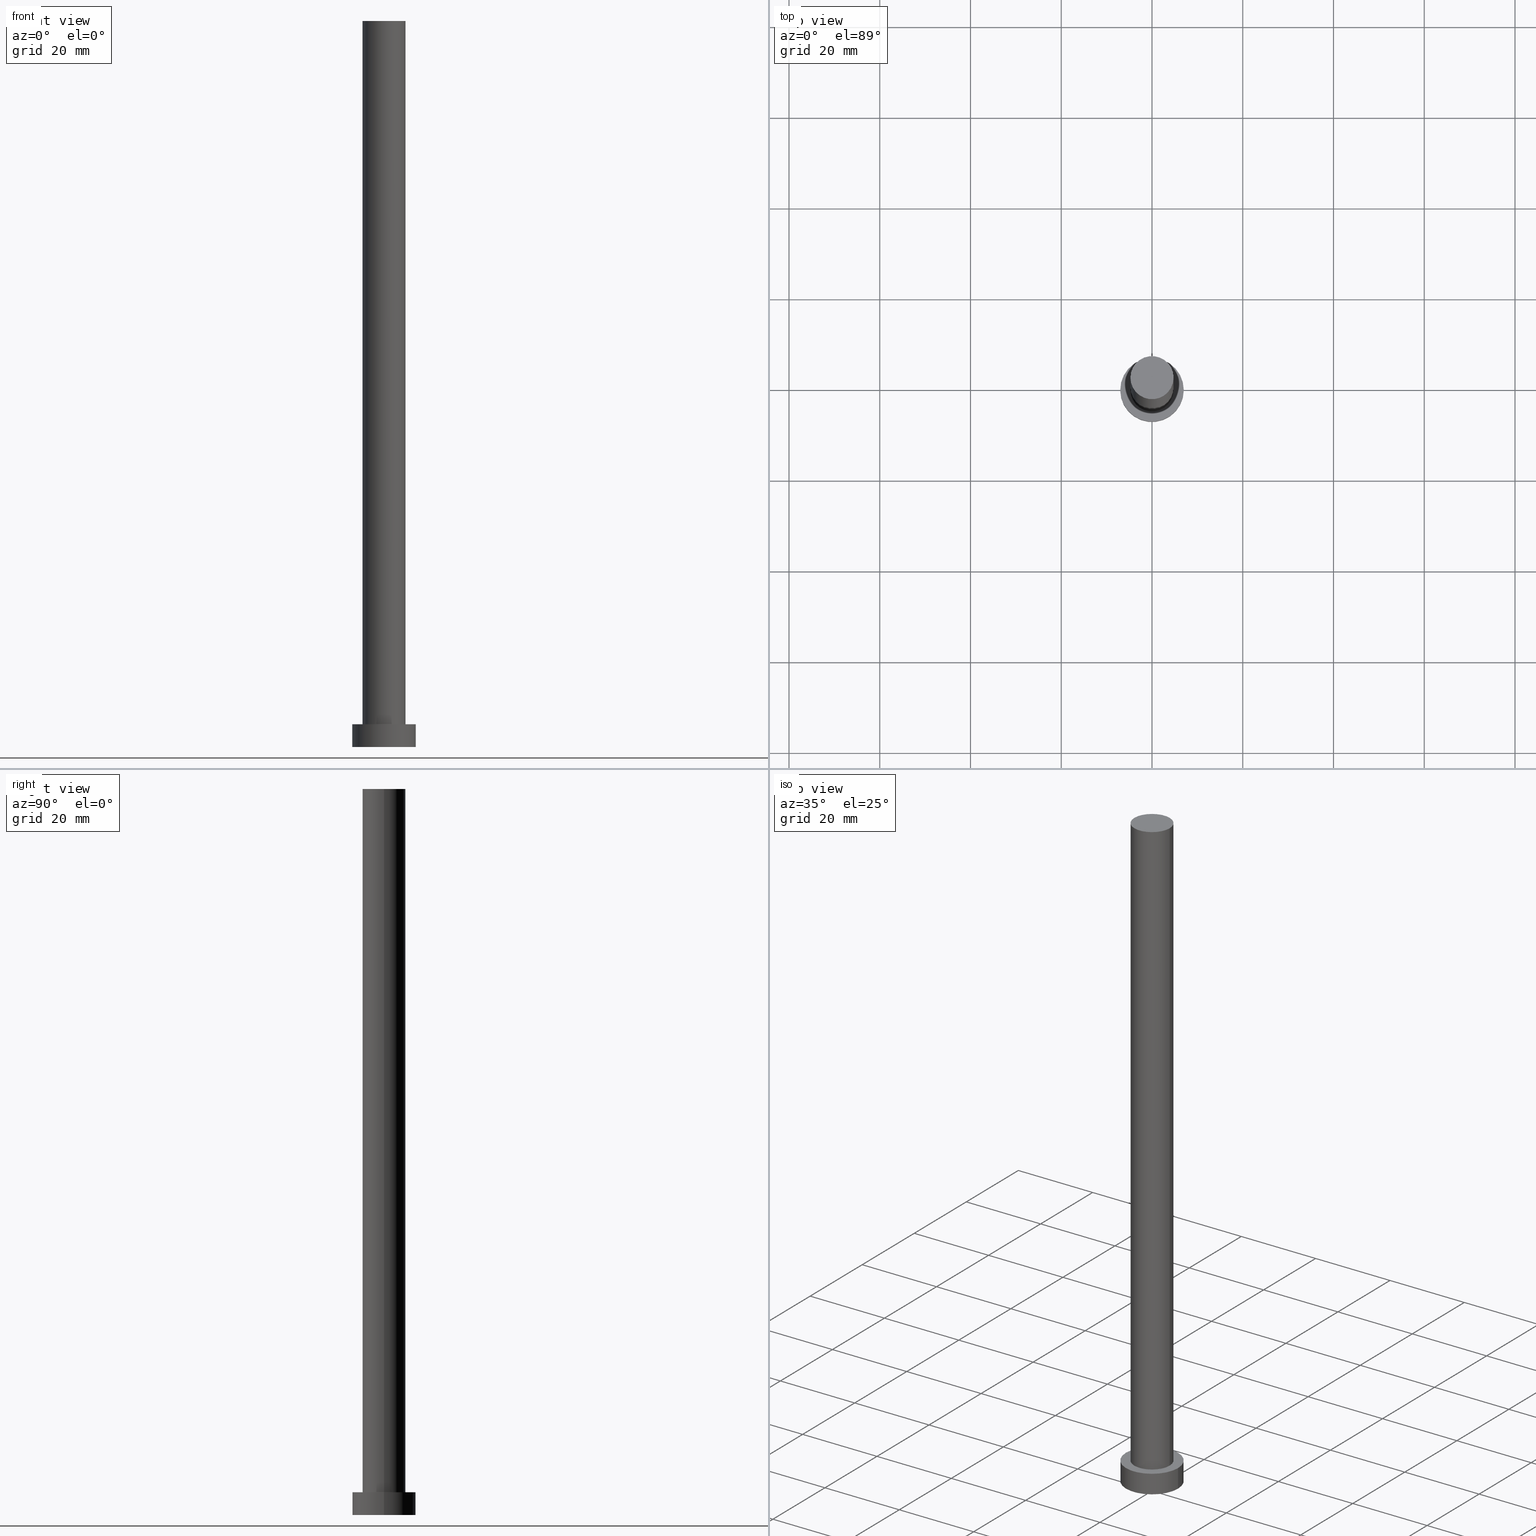
[diagram: canonical four-view strip — front | top / right | iso, engineering-drawing reading convention]
A machine part, canonical four-view strip (front | top / right | iso — engineering-drawing reading convention). The complete STEP part file that produces these views, byte-faithful:
ISO-10303-21;
HEADER;
FILE_DESCRIPTION (( 'STEP AP203' ),
    '1' );
FILE_NAME ('d84f.STEP',
    '2026-02-06T12:38:02',
    ( '' ),
    ( '' ),
    'SwSTEP 2.0',
    'SolidWorks 2019',
    '' );
FILE_SCHEMA (( 'CONFIG_CONTROL_DESIGN' ));
ENDSEC;

DATA;
#1 = DIRECTION ( 'NONE',  ( -0.000000000000000000, -0.000000000000000000, -1.000000000000000000 ) ) ;
#2 = APPROVAL ( #171, 'NEUR�EN�' ) ;
#3 = CARTESIAN_POINT ( 'NONE',  ( 0.000000000000000000, 0.000000000000000000, 160.0000000000000000 ) ) ;
#4 = AXIS2_PLACEMENT_3D ( 'NONE', #175, #113, #40 ) ;
#5 = PERSON_AND_ORGANIZATION_ROLE ( 'design_supplier' ) ;
#6 = ORIENTED_EDGE ( 'NONE', *, *, #218, .T. ) ;
#7 = AXIS2_PLACEMENT_3D ( 'NONE', #125, #156, #45 ) ;
#8 = EDGE_LOOP ( 'NONE', ( #59, #214 ) ) ;
#9 = CC_DESIGN_DATE_AND_TIME_ASSIGNMENT ( #250, #81, ( #102 ) ) ;
#10 = PERSON_AND_ORGANIZATION ( #68, #108 ) ;
#11 = DATE_AND_TIME ( #194, #48 ) ;
#12 = VERTEX_POINT ( 'NONE', #219 ) ;
#13 = CARTESIAN_POINT ( 'NONE',  ( 4.750000000000000888, 5.817072295949928412E-16, 160.0000000000000000 ) ) ;
#14 = DIRECTION ( 'NONE',  ( 0.000000000000000000, 0.000000000000000000, 1.000000000000000000 ) ) ;
#15 = CARTESIAN_POINT ( 'NONE',  ( 0.000000000000000000, 0.000000000000000000, 160.0000000000000000 ) ) ;
#16 = CALENDAR_DATE ( 2026, 6, 2 ) ;
#17 = CARTESIAN_POINT ( 'NONE',  ( 0.000000000000000000, 0.000000000000000000, 160.0000000000000000 ) ) ;
#18 = DIRECTION ( 'NONE',  ( 0.000000000000000000, 0.000000000000000000, 1.000000000000000000 ) ) ;
#19 = CC_DESIGN_SECURITY_CLASSIFICATION ( #102, ( #187 ) ) ;
#20 = PERSON_AND_ORGANIZATION ( #68, #108 ) ;
#21 = DIRECTION ( 'NONE',  ( -0.000000000000000000, -0.000000000000000000, -1.000000000000000000 ) ) ;
#22 = CARTESIAN_POINT ( 'NONE',  ( -4.750000000000000888, 0.000000000000000000, 160.0000000000000000 ) ) ;
#23 = CARTESIAN_POINT ( 'NONE',  ( 4.750000000000000888, 5.817072295949928412E-16, 160.0000000000000000 ) ) ;
#24 = AXIS2_PLACEMENT_3D ( 'NONE', #139, #62, #221 ) ;
#25 = ADVANCED_FACE ( 'NONE', ( #38 ), #82, .T. ) ;
#26 = LOCAL_TIME ( 13, 38, 2.000000000000000000, #118 ) ;
#27 = PERSON_AND_ORGANIZATION ( #68, #108 ) ;
#28 = AXIS2_PLACEMENT_3D ( 'NONE', #135, #98, #117 ) ;
#29 = ORIENTED_EDGE ( 'NONE', *, *, #237, .T. ) ;
#30 = MANIFOLD_SOLID_BREP ( 'P�idat vysunut�m3', #46 ) ;
#31 = PERSON_AND_ORGANIZATION ( #68, #108 ) ;
#32 = ADVANCED_FACE ( 'NONE', ( #240 ), #177, .F. ) ;
#33 = PRODUCT ( 'd84f', 'd84f', '', ( #245 ) ) ;
#34 = PERSON_AND_ORGANIZATION_ROLE ( 'creator' ) ;
#35 = SHAPE_DEFINITION_REPRESENTATION ( #188, #92 ) ;
#36 = ORIENTED_EDGE ( 'NONE', *, *, #154, .T. ) ;
#37 = EDGE_CURVE ( 'NONE', #170, #110, #236, .T. ) ;
#38 = FACE_OUTER_BOUND ( 'NONE', #217, .T. ) ;
#39 = DIRECTION ( 'NONE',  ( 1.000000000000000000, 0.000000000000000000, 0.000000000000000000 ) ) ;
#40 = DIRECTION ( 'NONE',  ( 1.000000000000000000, 0.000000000000000000, 0.000000000000000000 ) ) ;
#41 = DIRECTION ( 'NONE',  ( 1.000000000000000000, 0.000000000000000000, 0.000000000000000000 ) ) ;
#42 = FACE_OUTER_BOUND ( 'NONE', #133, .T. ) ;
#43 = FACE_BOUND ( 'NONE', #8, .T. ) ;
#44 = AXIS2_PLACEMENT_3D ( 'NONE', #3, #51, #186 ) ;
#45 = DIRECTION ( 'NONE',  ( 1.000000000000000000, 0.000000000000000000, 0.000000000000000000 ) ) ;
#46 = CLOSED_SHELL ( 'NONE', ( #89, #25, #196, #226, #32, #189, #84 ) ) ;
#47 = AXIS2_PLACEMENT_3D ( 'NONE', #120, #103, #115 ) ;
#48 = LOCAL_TIME ( 13, 38, 2.000000000000000000, #111 ) ;
#49 = DIRECTION ( 'NONE',  ( -0.000000000000000000, -0.000000000000000000, -1.000000000000000000 ) ) ;
#50 = EDGE_CURVE ( 'NONE', #110, #96, #203, .T. ) ;
#51 = DIRECTION ( 'NONE',  ( -0.000000000000000000, -0.000000000000000000, -1.000000000000000000 ) ) ;
#52 = AXIS2_PLACEMENT_3D ( 'NONE', #224, #121, #64 ) ;
#53 = CARTESIAN_POINT ( 'NONE',  ( -4.750000000000000888, 0.000000000000000000, 5.000000000000000000 ) ) ;
#54 = AXIS2_PLACEMENT_3D ( 'NONE', #138, #220, #39 ) ;
#55 = ORIENTED_EDGE ( 'NONE', *, *, #71, .T. ) ;
#56 = EDGE_CURVE ( 'NONE', #192, #12, #229, .T. ) ;
#57 = VERTEX_POINT ( 'NONE', #254 ) ;
#58 = DATE_AND_TIME ( #151, #164 ) ;
#59 = ORIENTED_EDGE ( 'NONE', *, *, #208, .F. ) ;
#60 = AXIS2_PLACEMENT_3D ( 'NONE', #69, #99, #63 ) ;
#61 = APPLICATION_PROTOCOL_DEFINITION ( 'international standard', 'config_control_design', 1994, #253 ) ;
#62 = DIRECTION ( 'NONE',  ( 0.000000000000000000, 0.000000000000000000, 1.000000000000000000 ) ) ;
#63 = DIRECTION ( 'NONE',  ( -1.000000000000000000, 0.000000000000000000, 0.000000000000000000 ) ) ;
#64 = DIRECTION ( 'NONE',  ( 1.000000000000000000, 0.000000000000000000, 0.000000000000000000 ) ) ;
#65 = CARTESIAN_POINT ( 'NONE',  ( 7.000000000000000000, 8.572527594031473190E-16, 0.000000000000000000 ) ) ;
#66 = DIRECTION ( 'NONE',  ( 0.000000000000000000, 0.000000000000000000, 1.000000000000000000 ) ) ;
#67 = CARTESIAN_POINT ( 'NONE',  ( 0.000000000000000000, 0.000000000000000000, 0.000000000000000000 ) ) ;
#68 = PERSON ( 'NEUR�EN�', 'NEUR�EN�', 'NEUR�EN�', ('NEUR�EN�'), ('NEUR�EN�'), ('NEUR�EN�') ) ;
#69 = CARTESIAN_POINT ( 'NONE',  ( 0.000000000000000000, 0.000000000000000000, 5.000000000000000000 ) ) ;
#70 =( GEOMETRIC_REPRESENTATION_CONTEXT ( 3 ) GLOBAL_UNCERTAINTY_ASSIGNED_CONTEXT ( ( #143 ) ) GLOBAL_UNIT_ASSIGNED_CONTEXT ( ( #255, #142, #178 ) ) REPRESENTATION_CONTEXT ( 'NONE', 'WORKASPACE' ) );
#71 = EDGE_CURVE ( 'NONE', #244, #149, #184, .T. ) ;
#72 = PERSON_AND_ORGANIZATION_ROLE ( 'creator' ) ;
#73 = LINE ( 'NONE', #211, #75 ) ;
#74 = CC_DESIGN_APPROVAL ( #101, ( #187 ) ) ;
#75 = VECTOR ( 'NONE', #88, 1000.000000000000000 ) ;
#76 = ORIENTED_EDGE ( 'NONE', *, *, #218, .F. ) ;
#77 = EDGE_LOOP ( 'NONE', ( #129, #91, #231, #55 ) ) ;
#78 = DESIGN_CONTEXT ( 'detailed design', #253, 'design' ) ;
#79 = ORIENTED_EDGE ( 'NONE', *, *, #109, .T. ) ;
#80 = AXIS2_PLACEMENT_3D ( 'NONE', #239, #14, #180 ) ;
#81 = DATE_TIME_ROLE ( 'classification_date' ) ;
#82 = CYLINDRICAL_SURFACE ( 'NONE', #28, 7.000000000000000000 ) ;
#83 = CARTESIAN_POINT ( 'NONE',  ( 0.000000000000000000, 0.000000000000000000, 0.000000000000000000 ) ) ;
#84 = ADVANCED_FACE ( 'NONE', ( #42 ), #201, .T. ) ;
#85 = COORDINATED_UNIVERSAL_TIME_OFFSET ( 1, 0, .AHEAD. ) ;
#86 = FACE_OUTER_BOUND ( 'NONE', #77, .T. ) ;
#87 = APPROVAL_STATUS ( 'not_yet_approved' ) ;
#88 = DIRECTION ( 'NONE',  ( -0.000000000000000000, -0.000000000000000000, -1.000000000000000000 ) ) ;
#89 = ADVANCED_FACE ( 'NONE', ( #200 ), #209, .T. ) ;
#90 = APPROVAL_ROLE ( '' ) ;
#91 = ORIENTED_EDGE ( 'NONE', *, *, #56, .F. ) ;
#92 = ADVANCED_BREP_SHAPE_REPRESENTATION ( 'd84f', ( #30, #116 ), #70 ) ;
#93 = PERSON_AND_ORGANIZATION_ROLE ( 'classification_officer' ) ;
#94 = DATE_TIME_ROLE ( 'creation_date' ) ;
#95 = DATE_AND_TIME ( #197, #222 ) ;
#96 = VERTEX_POINT ( 'NONE', #53 ) ;
#97 = AXIS2_PLACEMENT_3D ( 'NONE', #83, #66, #198 ) ;
#98 = DIRECTION ( 'NONE',  ( -0.000000000000000000, -0.000000000000000000, -1.000000000000000000 ) ) ;
#99 = DIRECTION ( 'NONE',  ( -0.000000000000000000, -0.000000000000000000, -1.000000000000000000 ) ) ;
#100 = ORIENTED_EDGE ( 'NONE', *, *, #132, .F. ) ;
#101 = APPROVAL ( #87, 'NEUR�EN�' ) ;
#102 = SECURITY_CLASSIFICATION ( '', '', #242 ) ;
#103 = DIRECTION ( 'NONE',  ( 0.000000000000000000, 0.000000000000000000, 1.000000000000000000 ) ) ;
#104 = FACE_OUTER_BOUND ( 'NONE', #158, .T. ) ;
#105 = APPROVAL_PERSON_ORGANIZATION ( #136, #162, #165 ) ;
#106 = DIRECTION ( 'NONE',  ( 1.000000000000000000, 0.000000000000000000, -0.000000000000000000 ) ) ;
#107 = CARTESIAN_POINT ( 'NONE',  ( 0.000000000000000000, 0.000000000000000000, 160.0000000000000000 ) ) ;
#108 = ORGANIZATION ( 'NEUR�EN�', 'NEUR�EN�', '' ) ;
#109 = EDGE_CURVE ( 'NONE', #170, #57, #210, .T. ) ;
#110 = VERTEX_POINT ( 'NONE', #147 ) ;
#111 = COORDINATED_UNIVERSAL_TIME_OFFSET ( 1, 0, .AHEAD. ) ;
#112 = ORIENTED_EDGE ( 'NONE', *, *, #50, .T. ) ;
#113 = DIRECTION ( 'NONE',  ( 0.000000000000000000, 0.000000000000000000, 1.000000000000000000 ) ) ;
#114 = APPROVAL_STATUS ( 'not_yet_approved' ) ;
#115 = DIRECTION ( 'NONE',  ( 1.000000000000000000, 0.000000000000000000, 0.000000000000000000 ) ) ;
#116 = AXIS2_PLACEMENT_3D ( 'NONE', #67, #181, #41 ) ;
#117 = DIRECTION ( 'NONE',  ( -1.000000000000000000, 0.000000000000000000, 0.000000000000000000 ) ) ;
#118 = COORDINATED_UNIVERSAL_TIME_OFFSET ( 1, 0, .AHEAD. ) ;
#119 = COORDINATED_UNIVERSAL_TIME_OFFSET ( 1, 0, .AHEAD. ) ;
#120 = CARTESIAN_POINT ( 'NONE',  ( 0.000000000000000000, 0.000000000000000000, 5.000000000000000000 ) ) ;
#121 = DIRECTION ( 'NONE',  ( 0.000000000000000000, 0.000000000000000000, 1.000000000000000000 ) ) ;
#122 = CYLINDRICAL_SURFACE ( 'NONE', #60, 7.000000000000000000 ) ;
#123 = LINE ( 'NONE', #22, #183 ) ;
#124 = CC_DESIGN_DATE_AND_TIME_ASSIGNMENT ( #11, #94, ( #169 ) ) ;
#125 = CARTESIAN_POINT ( 'NONE',  ( 0.000000000000000000, 0.000000000000000000, 160.0000000000000000 ) ) ;
#126 = VECTOR ( 'NONE', #1, 1000.000000000000000 ) ;
#127 = EDGE_CURVE ( 'NONE', #12, #149, #73, .T. ) ;
#128 = AXIS2_PLACEMENT_3D ( 'NONE', #17, #21, #202 ) ;
#129 = ORIENTED_EDGE ( 'NONE', *, *, #127, .F. ) ;
#130 = PERSON_AND_ORGANIZATION ( #68, #108 ) ;
#131 = ORIENTED_EDGE ( 'NONE', *, *, #56, .T. ) ;
#132 = EDGE_CURVE ( 'NONE', #192, #244, #182, .T. ) ;
#133 = EDGE_LOOP ( 'NONE', ( #36, #79 ) ) ;
#134 = APPROVAL_DATE_TIME ( #58, #2 ) ;
#135 = CARTESIAN_POINT ( 'NONE',  ( 0.000000000000000000, 0.000000000000000000, 5.000000000000000000 ) ) ;
#136 = PERSON_AND_ORGANIZATION ( #68, #108 ) ;
#137 = CC_DESIGN_PERSON_AND_ORGANIZATION_ASSIGNMENT ( #130, #233, ( #33 ) ) ;
#138 = CARTESIAN_POINT ( 'NONE',  ( 0.000000000000000000, 0.000000000000000000, 5.000000000000000000 ) ) ;
#139 = CARTESIAN_POINT ( 'NONE',  ( 0.000000000000000000, 0.000000000000000000, 5.000000000000000000 ) ) ;
#140 = DIRECTION ( 'NONE',  ( -0.000000000000000000, -0.000000000000000000, -1.000000000000000000 ) ) ;
#141 = CARTESIAN_POINT ( 'NONE',  ( -7.000000000000000000, 0.000000000000000000, 5.000000000000000000 ) ) ;
#142 =( NAMED_UNIT ( * ) PLANE_ANGLE_UNIT ( ) SI_UNIT ( $, .RADIAN. ) );
#143 = UNCERTAINTY_MEASURE_WITH_UNIT (LENGTH_MEASURE( 1.000000000000000082E-05 ), #255, 'distance_accuracy_value', 'NONE');
#144 = APPROVAL_ROLE ( '' ) ;
#145 = CARTESIAN_POINT ( 'NONE',  ( 0.000000000000000000, 0.000000000000000000, 5.000000000000000000 ) ) ;
#146 = DIRECTION ( 'NONE',  ( 0.000000000000000000, 0.000000000000000000, 1.000000000000000000 ) ) ;
#147 = CARTESIAN_POINT ( 'NONE',  ( 4.750000000000000888, 5.817072295949928412E-16, 5.000000000000000000 ) ) ;
#148 = CC_DESIGN_PERSON_AND_ORGANIZATION_ASSIGNMENT ( #163, #72, ( #187 ) ) ;
#149 = VERTEX_POINT ( 'NONE', #65 ) ;
#150 = ORIENTED_EDGE ( 'NONE', *, *, #174, .F. ) ;
#151 = CALENDAR_DATE ( 2026, 6, 2 ) ;
#152 = ORIENTED_EDGE ( 'NONE', *, *, #237, .F. ) ;
#153 = CC_DESIGN_APPROVAL ( #2, ( #169 ) ) ;
#154 = EDGE_CURVE ( 'NONE', #57, #170, #225, .T. ) ;
#155 = ORIENTED_EDGE ( 'NONE', *, *, #37, .F. ) ;
#156 = DIRECTION ( 'NONE',  ( 0.000000000000000000, 0.000000000000000000, 1.000000000000000000 ) ) ;
#157 = CIRCLE ( 'NONE', #54, 4.750000000000000888 ) ;
#158 = EDGE_LOOP ( 'NONE', ( #131, #6 ) ) ;
#159 = PLANE ( 'NONE',  #166 ) ;
#160 = CALENDAR_DATE ( 2026, 6, 2 ) ;
#161 = APPLICATION_PROTOCOL_DEFINITION ( 'international standard', 'config_control_design', 1994, #193 ) ;
#162 = APPROVAL ( #114, 'NEUR�EN�' ) ;
#163 = PERSON_AND_ORGANIZATION ( #68, #108 ) ;
#164 = LOCAL_TIME ( 13, 38, 2.000000000000000000, #172 ) ;
#165 = APPROVAL_ROLE ( '' ) ;
#166 = AXIS2_PLACEMENT_3D ( 'NONE', #145, #199, #106 ) ;
#167 = APPROVAL_PERSON_ORGANIZATION ( #31, #2, #90 ) ;
#168 = DIRECTION ( 'NONE',  ( 1.000000000000000000, 0.000000000000000000, 0.000000000000000000 ) ) ;
#169 = PRODUCT_DEFINITION ( 'NEZN�M�', '', #187, #78 ) ;
#170 = VERTEX_POINT ( 'NONE', #23 ) ;
#171 = APPROVAL_STATUS ( 'not_yet_approved' ) ;
#172 = COORDINATED_UNIVERSAL_TIME_OFFSET ( 1, 0, .AHEAD. ) ;
#173 = ORIENTED_EDGE ( 'NONE', *, *, #154, .F. ) ;
#174 = EDGE_CURVE ( 'NONE', #57, #96, #123, .T. ) ;
#175 = CARTESIAN_POINT ( 'NONE',  ( 0.000000000000000000, 0.000000000000000000, 0.000000000000000000 ) ) ;
#176 = CARTESIAN_POINT ( 'NONE',  ( -7.000000000000000000, 0.000000000000000000, 0.000000000000000000 ) ) ;
#177 = PLANE ( 'NONE',  #97 ) ;
#178 =( NAMED_UNIT ( * ) SI_UNIT ( $, .STERADIAN. ) SOLID_ANGLE_UNIT ( ) );
#179 = LOCAL_TIME ( 13, 38, 2.000000000000000000, #85 ) ;
#180 = DIRECTION ( 'NONE',  ( 1.000000000000000000, 0.000000000000000000, 0.000000000000000000 ) ) ;
#181 = DIRECTION ( 'NONE',  ( 0.000000000000000000, 0.000000000000000000, 1.000000000000000000 ) ) ;
#182 = LINE ( 'NONE', #141, #126 ) ;
#183 = VECTOR ( 'NONE', #49, 1000.000000000000000 ) ;
#184 = CIRCLE ( 'NONE', #4, 7.000000000000000000 ) ;
#185 = CIRCLE ( 'NONE', #80, 7.000000000000000000 ) ;
#186 = DIRECTION ( 'NONE',  ( -1.000000000000000000, 0.000000000000000000, 0.000000000000000000 ) ) ;
#187 = PRODUCT_DEFINITION_FORMATION_WITH_SPECIFIED_SOURCE ( 'LIBOVOLN�', '', #33, .NOT_KNOWN. ) ;
#188 = PRODUCT_DEFINITION_SHAPE ( 'NONE', 'NONE',  #169 ) ;
#189 = ADVANCED_FACE ( 'NONE', ( #228 ), #235, .T. ) ;
#190 = ORIENTED_EDGE ( 'NONE', *, *, #37, .T. ) ;
#191 = ORIENTED_EDGE ( 'NONE', *, *, #174, .T. ) ;
#192 = VERTEX_POINT ( 'NONE', #204 ) ;
#193 = APPLICATION_CONTEXT ( 'configuration controlled 3d designs of mechanical parts and assemblies' ) ;
#194 = CALENDAR_DATE ( 2026, 6, 2 ) ;
#195 = ORIENTED_EDGE ( 'NONE', *, *, #208, .T. ) ;
#196 = ADVANCED_FACE ( 'NONE', ( #86 ), #122, .T. ) ;
#197 = CALENDAR_DATE ( 2026, 6, 2 ) ;
#198 = DIRECTION ( 'NONE',  ( 1.000000000000000000, 0.000000000000000000, -0.000000000000000000 ) ) ;
#199 = DIRECTION ( 'NONE',  ( 0.000000000000000000, 0.000000000000000000, 1.000000000000000000 ) ) ;
#200 = FACE_OUTER_BOUND ( 'NONE', #215, .T. ) ;
#201 = PLANE ( 'NONE',  #206 ) ;
#202 = DIRECTION ( 'NONE',  ( -1.000000000000000000, 0.000000000000000000, 0.000000000000000000 ) ) ;
#203 = CIRCLE ( 'NONE', #52, 4.750000000000000888 ) ;
#204 = CARTESIAN_POINT ( 'NONE',  ( -7.000000000000000000, 0.000000000000000000, 5.000000000000000000 ) ) ;
#205 = CC_DESIGN_PERSON_AND_ORGANIZATION_ASSIGNMENT ( #216, #34, ( #169 ) ) ;
#206 = AXIS2_PLACEMENT_3D ( 'NONE', #15, #18, #234 ) ;
#207 = CC_DESIGN_APPROVAL ( #162, ( #102 ) ) ;
#208 = EDGE_CURVE ( 'NONE', #96, #110, #157, .T. ) ;
#209 = CYLINDRICAL_SURFACE ( 'NONE', #44, 4.750000000000000888 ) ;
#210 = CIRCLE ( 'NONE', #238, 4.750000000000000888 ) ;
#211 = CARTESIAN_POINT ( 'NONE',  ( 7.000000000000000000, 8.572527594031473190E-16, 5.000000000000000000 ) ) ;
#212 = APPROVAL_PERSON_ORGANIZATION ( #20, #101, #144 ) ;
#213 = EDGE_LOOP ( 'NONE', ( #230, #152 ) ) ;
#214 = ORIENTED_EDGE ( 'NONE', *, *, #50, .F. ) ;
#215 = EDGE_LOOP ( 'NONE', ( #247, #190, #112, #150 ) ) ;
#216 = PERSON_AND_ORGANIZATION ( #68, #108 ) ;
#217 = EDGE_LOOP ( 'NONE', ( #76, #249, #29, #100 ) ) ;
#218 = EDGE_CURVE ( 'NONE', #12, #192, #232, .T. ) ;
#219 = CARTESIAN_POINT ( 'NONE',  ( 7.000000000000000000, 8.572527594031473190E-16, 5.000000000000000000 ) ) ;
#220 = DIRECTION ( 'NONE',  ( 0.000000000000000000, 0.000000000000000000, 1.000000000000000000 ) ) ;
#221 = DIRECTION ( 'NONE',  ( 1.000000000000000000, 0.000000000000000000, 0.000000000000000000 ) ) ;
#222 = LOCAL_TIME ( 13, 38, 2.000000000000000000, #119 ) ;
#223 = PRODUCT_RELATED_PRODUCT_CATEGORY ( 'detail', '', ( #33 ) ) ;
#224 = CARTESIAN_POINT ( 'NONE',  ( 0.000000000000000000, 0.000000000000000000, 5.000000000000000000 ) ) ;
#225 = CIRCLE ( 'NONE', #7, 4.750000000000000888 ) ;
#226 = ADVANCED_FACE ( 'NONE', ( #43, #104 ), #159, .T. ) ;
#227 = APPROVAL_DATE_TIME ( #241, #101 ) ;
#228 = FACE_OUTER_BOUND ( 'NONE', #252, .T. ) ;
#229 = CIRCLE ( 'NONE', #24, 7.000000000000000000 ) ;
#230 = ORIENTED_EDGE ( 'NONE', *, *, #71, .F. ) ;
#231 = ORIENTED_EDGE ( 'NONE', *, *, #132, .T. ) ;
#232 = CIRCLE ( 'NONE', #47, 7.000000000000000000 ) ;
#233 = PERSON_AND_ORGANIZATION_ROLE ( 'design_owner' ) ;
#234 = DIRECTION ( 'NONE',  ( 1.000000000000000000, 0.000000000000000000, -0.000000000000000000 ) ) ;
#235 = CYLINDRICAL_SURFACE ( 'NONE', #128, 4.750000000000000888 ) ;
#236 = LINE ( 'NONE', #13, #251 ) ;
#237 = EDGE_CURVE ( 'NONE', #149, #244, #185, .T. ) ;
#238 = AXIS2_PLACEMENT_3D ( 'NONE', #107, #146, #168 ) ;
#239 = CARTESIAN_POINT ( 'NONE',  ( 0.000000000000000000, 0.000000000000000000, 0.000000000000000000 ) ) ;
#240 = FACE_OUTER_BOUND ( 'NONE', #213, .T. ) ;
#241 = DATE_AND_TIME ( #160, #179 ) ;
#242 = SECURITY_CLASSIFICATION_LEVEL ( 'unclassified' ) ;
#243 = CC_DESIGN_PERSON_AND_ORGANIZATION_ASSIGNMENT ( #27, #5, ( #187 ) ) ;
#244 = VERTEX_POINT ( 'NONE', #176 ) ;
#245 = MECHANICAL_CONTEXT ( 'NONE', #193, 'mechanical' ) ;
#246 = APPROVAL_DATE_TIME ( #95, #162 ) ;
#247 = ORIENTED_EDGE ( 'NONE', *, *, #109, .F. ) ;
#248 = CC_DESIGN_PERSON_AND_ORGANIZATION_ASSIGNMENT ( #10, #93, ( #102 ) ) ;
#249 = ORIENTED_EDGE ( 'NONE', *, *, #127, .T. ) ;
#250 = DATE_AND_TIME ( #16, #26 ) ;
#251 = VECTOR ( 'NONE', #140, 1000.000000000000000 ) ;
#252 = EDGE_LOOP ( 'NONE', ( #155, #173, #191, #195 ) ) ;
#253 = APPLICATION_CONTEXT ( 'configuration controlled 3d designs of mechanical parts and assemblies' ) ;
#254 = CARTESIAN_POINT ( 'NONE',  ( -4.750000000000000888, 0.000000000000000000, 160.0000000000000000 ) ) ;
#255 =( LENGTH_UNIT ( ) NAMED_UNIT ( * ) SI_UNIT ( .MILLI., .METRE. ) );
ENDSEC;
END-ISO-10303-21;
